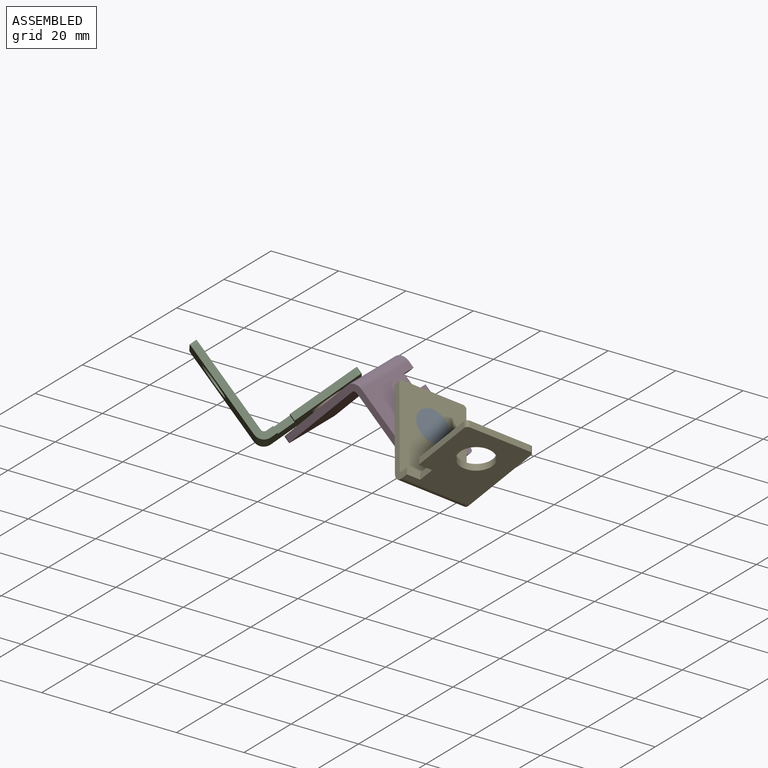
[diagram: assembled view]
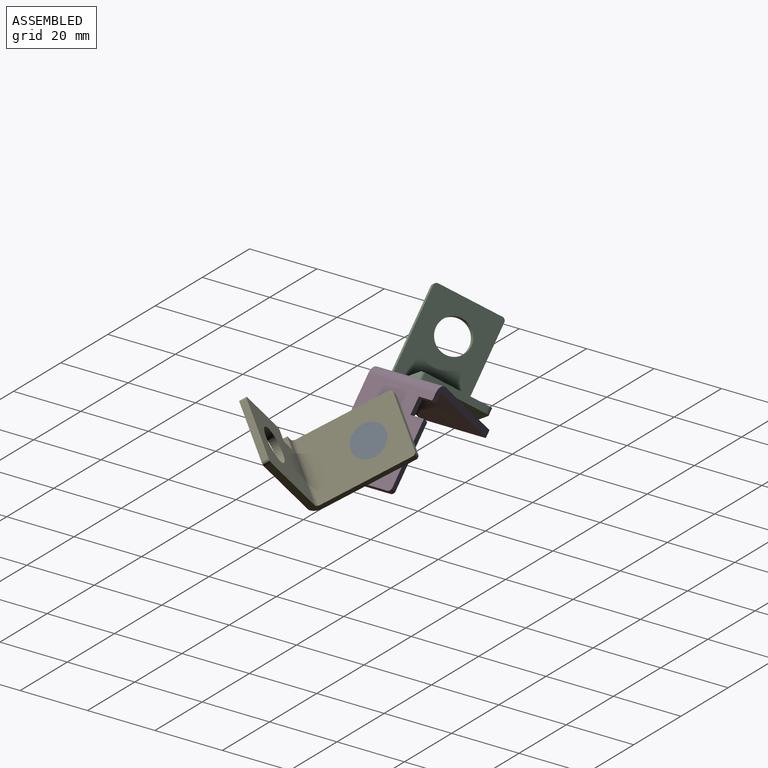
[diagram: assembled view, second angle]
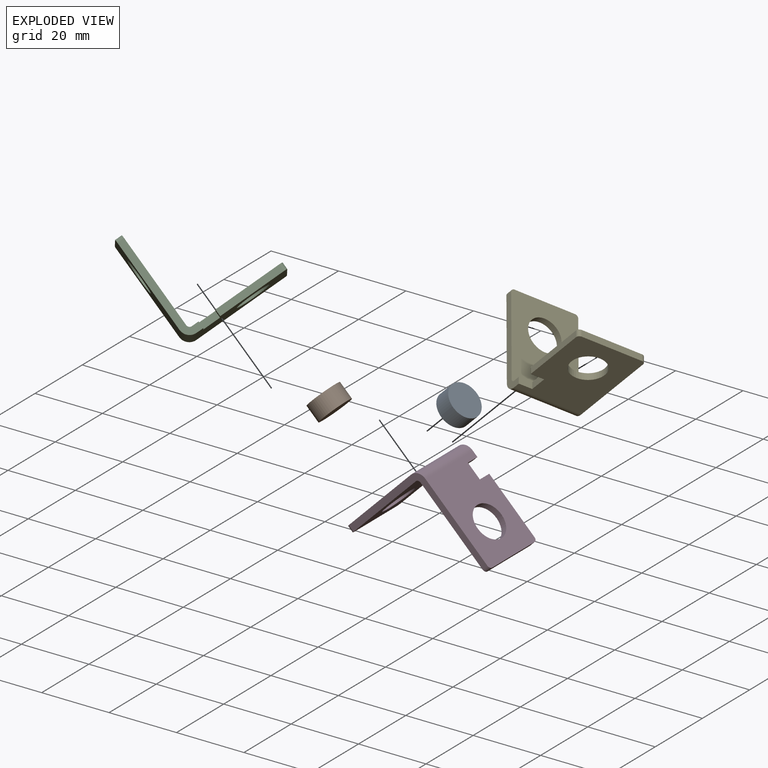
[diagram: exploded view]
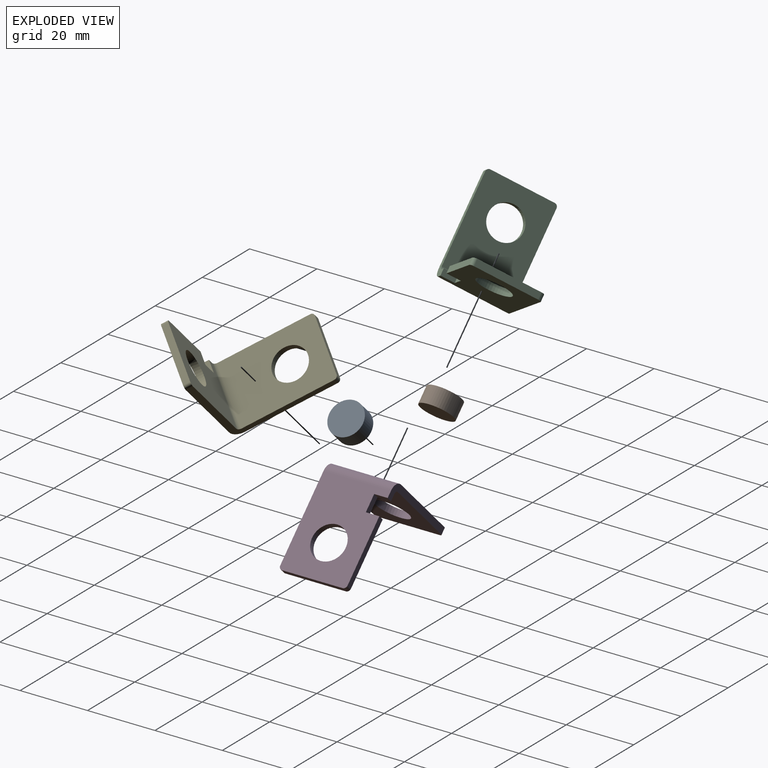
[diagram: exploded view, second angle]
ASSEMBLY  parts=5 mates=4
PART A: 3 faces, bbox 10x5x10 mm
  f0: cylinder r=5mm len=10mm, axis (0,1,0), area 157.1mm2, adj f1,f2
  f1: plane 10x10mm, normal (0,-1,0), area 78.5mm2, adj f0
  f2: plane 10x10mm, normal (0,1,0), area 78.5mm2, adj f0
PART B: same geometry as A
PART C: 20 faces, bbox 20x30x30 mm
  f0: plane 29x5mm, normal (1,0,0), area 62.3mm2, adj f1,f2,f4,f6,f9,f13,f16,f19
  f1: plane 27x20mm, normal (0,1,0), area 441mm2, adj f0,f5,f7,f8,f10,f12,f15,f16
  f2: plane 27x20mm, normal (0,0,1), area 461mm2, adj f0,f3,f8,f9,f11,f13,f14
  f3: plane 18x2mm, normal (0,-1,0), area 36mm2, adj f2,f4,f11,f13
  f4: plane 27x20mm, normal (0,0,-1), area 461mm2, adj f0,f3,f8,f11,f13,f14,f19
  f5: plane 18x2mm, normal (0,0,1), area 36mm2, adj f1,f6,f10,f12
  f6: plane 27x20mm, normal (0,-1,0), area 441mm2, adj f0,f5,f7,f8,f9,f10,f12,f15
  f7: plane 19x2mm, normal (1,0,0), area 38mm2, adj f1,f6,f12,f17
  f8: plane 29x29mm, normal (-1,0,0), area 110.3mm2, adj f1,f2,f4,f6,f9,f10,f11,f19
  f9: cylinder r=1mm len=20mm, axis (1,0,0), area 31.4mm2, adj f0,f2,f6,f8
  f10: cylinder r=1mm len=2mm, axis (0,-1,0), area 3.1mm2, adj f1,f5,f6,f8
  f11: cylinder r=1mm len=2mm, axis (0,0,-1), area 3.1mm2, adj f2,f3,f4,f8
  f12: cylinder r=1mm len=2mm, axis (0,1,0), area 3.1mm2, adj f1,f5,f6,f7
  f13: cylinder r=1mm len=2mm, axis (0,0,1), area 3.1mm2, adj f0,f2,f3,f4
  f14: cylinder r=5mm len=10mm, axis (0,0,1), area 62.8mm2, adj f2,f4
  f15: cylinder r=5mm len=10mm, axis (0,-1,0), area 62.8mm2, adj f1,f6
  f16: plane 4x2mm, normal (0,0,1), area 8mm2, adj f0,f1,f6,f18
  f17: plane 4x2mm, normal (0,0,-1), area 8mm2, adj f1,f6,f7,f18
  f18: plane 5x2mm, normal (1,0,0), area 10mm2, adj f1,f6,f16,f17
  f19: cylinder r=3mm len=20mm, axis (-1,0,0), area 94.2mm2, adj f0,f1,f4,f8
PART D: same geometry as C
PART E: same geometry as C
PLACE A rot(axis=(-0.36,-0.36,0.86),98.4deg) t=(34.57,25.23,-40.77)mm
PLACE B rot(axis=(-0.71,0,-0.71),90deg) t=(-7.45,15.53,-37.93)mm
PLACE C rot(axis=(-0.71,0,-0.71),90deg) t=(-15.44,10.37,-37.22)mm fixed
PLACE D rot(axis=(0.68,0.68,0.28),148.6deg) t=(9.2,25.23,-17.02)mm
PLACE E rot(axis=(-0.38,0.16,-0.91),138.6deg) t=(34.7,13.31,-38.08)mm
MATE revolute A.f0 <-> E.f14  axis (0.71,0,0.71) through (28.4,25.23,-27.53)mm
MATE revolute B.f0 <-> D.f14  axis (0.71,0,-0.71) through (-0.59,25.23,-31.06)mm
MATE fastened C.f15 <-> B.f0  axis (-0.71,0,0.71) through (-4.13,25.23,-27.53)mm
MATE fastened A.f0 <-> D.f15  axis (-0.71,0,-0.71) through (24.86,25.23,-31.06)mm
